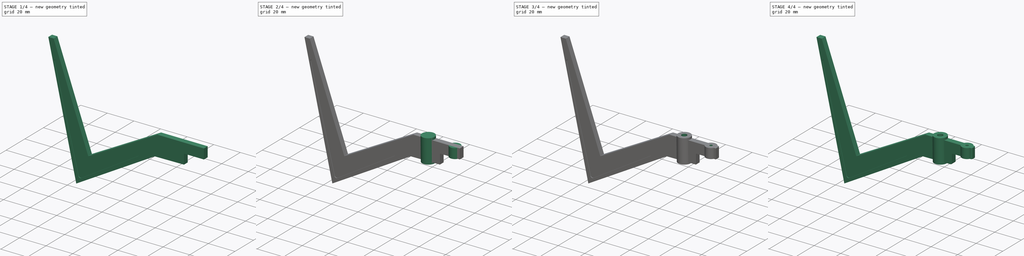
[diagram: build sequence overview — one tinted view per stage of 4, left to right]
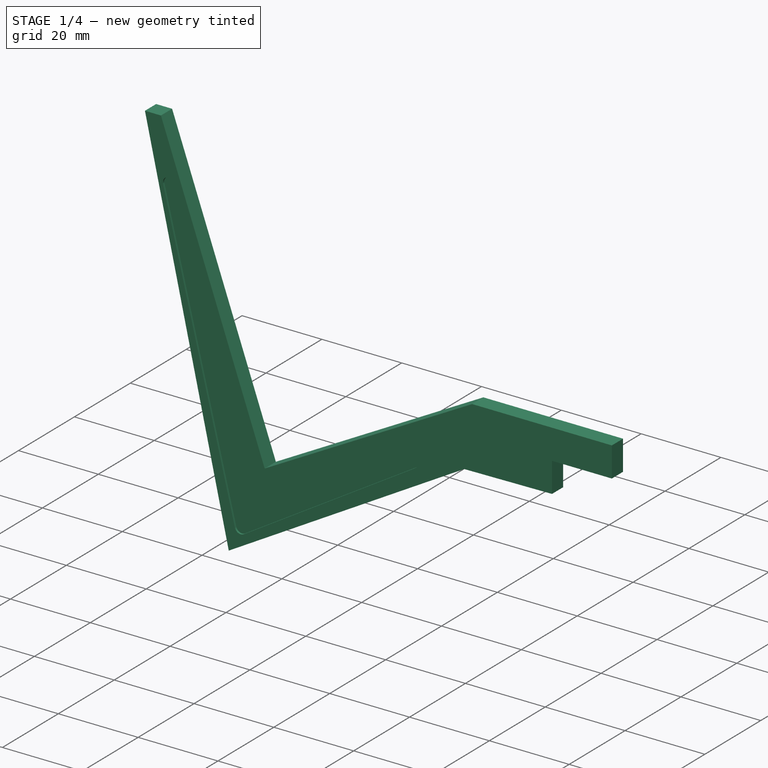
[diagram: stage 1 of 4 — iso view after this stage's code; geometry added in this stage tinted green]
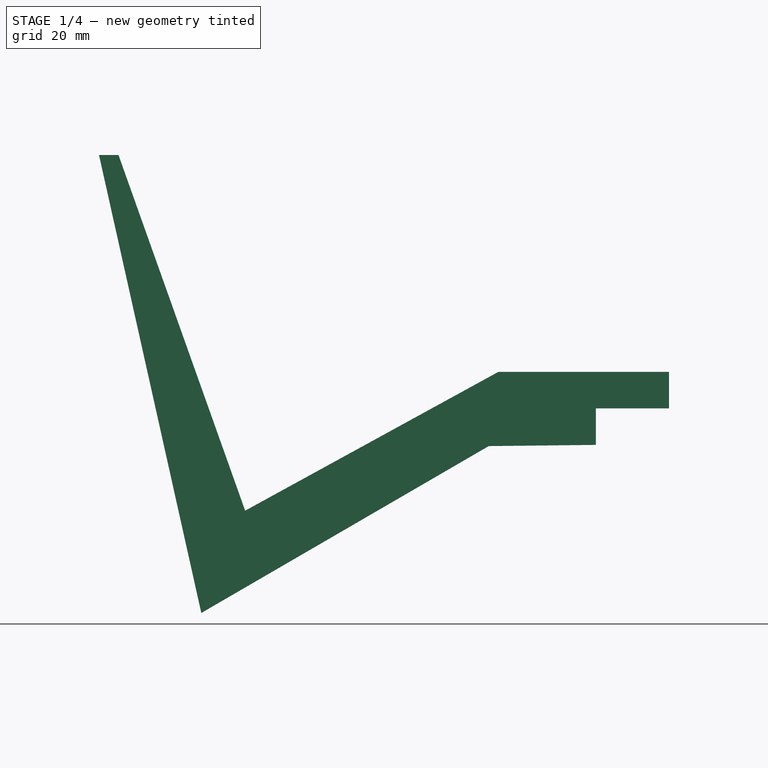
[diagram: stage 1 of 4 — front view after this stage's code; geometry added in this stage tinted green]
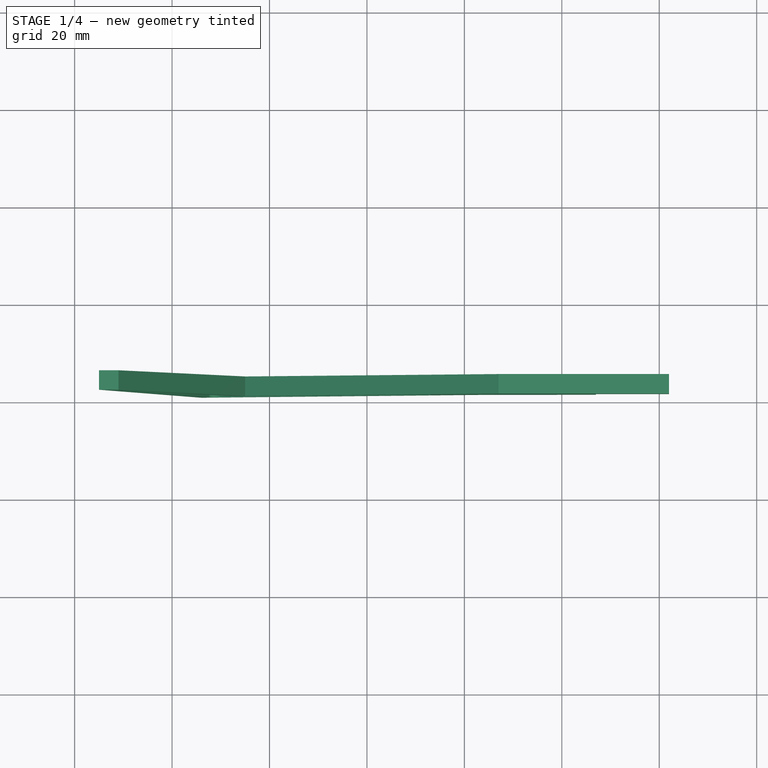
[diagram: stage 1 of 4 — top view after this stage's code; geometry added in this stage tinted green]
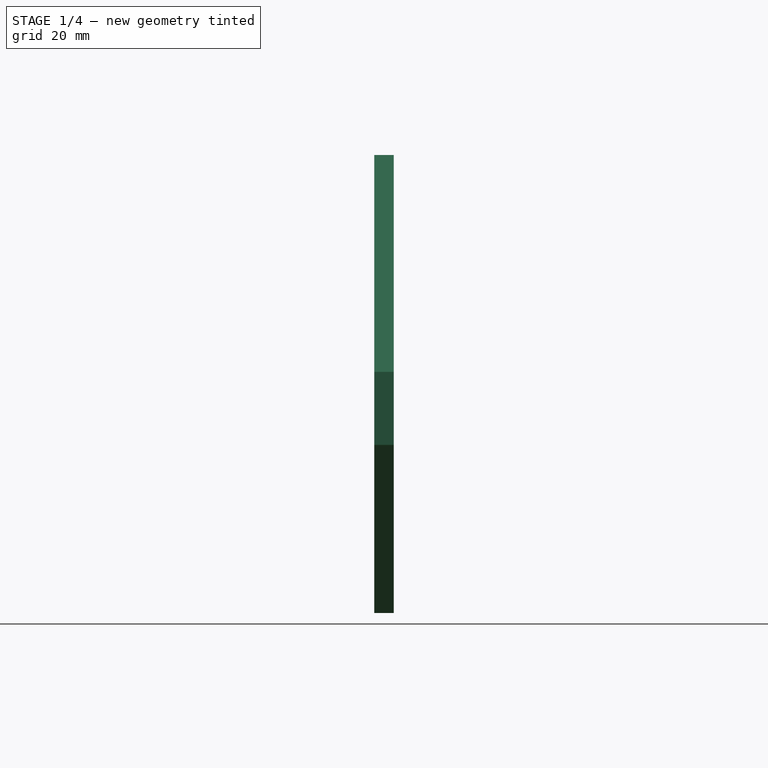
[diagram: stage 1 of 4 — right view after this stage's code; geometry added in this stage tinted green]
FCSTD DOCUMENT  (FreeCAD 0.14R3700 (Git))
Label: patte oscillante b
License: CC-BY 3.0
LicenseURL: http://creativecommons.org/licenses/by/3.0/
objects: Sketcher::SketchObject×6, PartDesign::Pad×3, PartDesign::Pocket×3, PartDesign::Fillet×3
note: 21 computed .brp shape members not serialized (recipe doc carries the construction recipe); baked Part::Feature solids carry a one-line shape summary decoded from their .brp

FEATURE [Sketcher::SketchObject] Sketch  label="corps de patte"
  Placement = pos=(-43,85,6) rot=(0,0.707107,-0.707107;3.14159rad)
  sketch-geometry (10):
    g0: LineSegment StartX=-25 StartY=-15.5 StartZ=0 EndX=-25 EndY=-8 EndZ=0
    g1: LineSegment StartX=-25 StartY=-8 StartZ=0 EndX=-10 EndY=-8 EndZ=0
    g2: LineSegment StartX=-10 StartY=-8 StartZ=0 EndX=-10 EndY=-0.5 EndZ=0
    g3: LineSegment StartX=-10 StartY=-0.5 StartZ=0 EndX=12 EndY=-0.25447 EndZ=0
    g4: LineSegment StartX=12 StartY=-0.25447 StartZ=0 EndX=71 EndY=34 EndZ=0
    g5: LineSegment StartX=71 StartY=34 StartZ=0 EndX=92 EndY=-60 EndZ=0
    g6: LineSegment StartX=92 StartY=-60 StartZ=0 EndX=88 EndY=-60 EndZ=0
    g7: LineSegment StartX=88 StartY=-60 StartZ=0 EndX=62 EndY=13 EndZ=0
    g8: LineSegment StartX=62 StartY=13 StartZ=0 EndX=10 EndY=-15.5 EndZ=0
    g9: LineSegment StartX=10 StartY=-15.5 StartZ=0 EndX=-25 EndY=-15.5 EndZ=0
  constraints (29):
    c: Coincident(g0,g1)
    c: Coincident(g1,g2)
    c: Coincident(g2,g3)
    c: Coincident(g3,g4)
    c: Coincident(g4,g5)
    c: Coincident(g5,g6)
    c: Coincident(g6,g7)
    c: Coincident(g7,g8)
    c: Coincident(g8,g9)
    c: Coincident(g9,g0)
    c: Vertical(g0)
    c: Horizontal(g1)
    c: Horizontal(g9)
    c: Horizontal(g6)
    c: DistanceX(g-1,g2) = -10
    c: Vertical(g2)
    c: DistanceX(g-1,g0) = -25
    c: DistanceY(g-1,g0) = -8
    c: DistanceY(g-1,g0) = -15.5
    c: DistanceX(g-1,g8) = 10
    c: DistanceX(g-1,g3) = 12
    c: DistanceX(g-1,g4) = 71
    c: DistanceX(g-1,g7) = 62
    c: DistanceX(g-1,g6) = 88
    c: DistanceX(g-1,g5) = 92
    c: DistanceY(g-1,g7) = 13
    c: DistanceY(g-1,g4) = 34
    c: DistanceY(g-1,g2) = -0.5
    c: DistanceY(g-1,g5) = -60
FEATURE [PartDesign::Pad] Pad
  Length = 4
  Length2 = 4
  Placement = pos=(-43,85,6) rot=(0,0.707107,-0.707107;3.14159rad)
  Sketch = -> Sketch
  Type = 0
FEATURE [Sketcher::SketchObject] Sketch001  label="evidement"
  Placement = pos=(-43,81,6) rot=(0,-0.707107,0.707107;3.14159rad)
  Support = -> Pad [Face12]
  sketch-geometry (10):
    g0: LineSegment StartX=23.5 StartY=-1.5 StartZ=0 EndX=23.5 EndY=1.5 EndZ=0
    g1: LineSegment StartX=24.213 StartY=2.77698 StartZ=0 EndX=67.213 EndY=29.277 EndZ=0
    g2: LineSegment StartX=69.4564 StartY=28.3591 StartZ=0 EndX=87.4564 EndY=-44.6409 EndZ=0
    g3: LineSegment StartX=84.5758 StartY=-45.4709 StartZ=0 EndX=64.4242 EndY=15.4709 EndZ=0
    g4: LineSegment StartX=62.3045 StartY=16.329 StartZ=0 EndX=25.6955 EndY=-2.82902 EndZ=0
    g5: ArcOfCircle CenterX=25 CenterY=1.5 CenterZ=0 NormalX=0 NormalY=0 NormalZ=1 Radius=1.5 StartAngle=2.1231 EndAngle=3.14159
    g6: ArcOfCircle CenterX=25 CenterY=-1.5 CenterZ=0 NormalX=0 NormalY=0 NormalZ=1 Radius=1.5 StartAngle=3.14159 EndAngle=5.19451
    g7: ArcOfCircle CenterX=63 CenterY=15 CenterZ=0 NormalX=0 NormalY=0 NormalZ=1 Radius=1.5 StartAngle=0.319352 EndAngle=2.05292
    g8: ArcOfCircle CenterX=68 CenterY=28 CenterZ=0 NormalX=0 NormalY=0 NormalZ=1 Radius=1.5 StartAngle=0.241753 EndAngle=2.1231
    g9: ArcOfCircle CenterX=86 CenterY=-45 CenterZ=0 NormalX=0 NormalY=0 NormalZ=1 Radius=1.5 StartAngle=3.46094 EndAngle=6.52494
  constraints (25):
    c: Tangent(g1,g5)
    c: Tangent(g0,g5)
    c: Radius(g5) = 1.5
    c: Tangent(g0,g6)
    c: Tangent(g4,g6)
    c: Tangent(g4,g7)
    c: Tangent(g3,g7)
    c: Tangent(g1,g8)
    c: Tangent(g2,g8)
    c: Tangent(g2,g9)
    c: Tangent(g3,g9)
    c: Radius(g6) = 1.5
    c: Radius(g9) = 1.5
    c: Radius(g7) = 1.5
    c: Radius(g8) = 1.5
    c: Vertical(g0)
    c: DistanceY(g-1,g6) = -1.5
    c: DistanceY(g-1,g5) = 1.5
    c: DistanceX(g-1,g6) = 25
    c: DistanceY(g-1,g7) = 15
    c: DistanceX(g-1,g7) = 63
    c: DistanceY(g-1,g8) = 28
    c: DistanceX(g-1,g8) = 68
    c: DistanceX(g-1,g9) = 86
    c: DistanceY(g-1,g9) = -45
FEATURE [PartDesign::Pocket] Pocket
  Length = 0.5
  Placement = pos=(-43,85,6) rot=(0,0.707107,-0.707107;3.14159rad)
  Sketch = -> Sketch001
  Type = 0
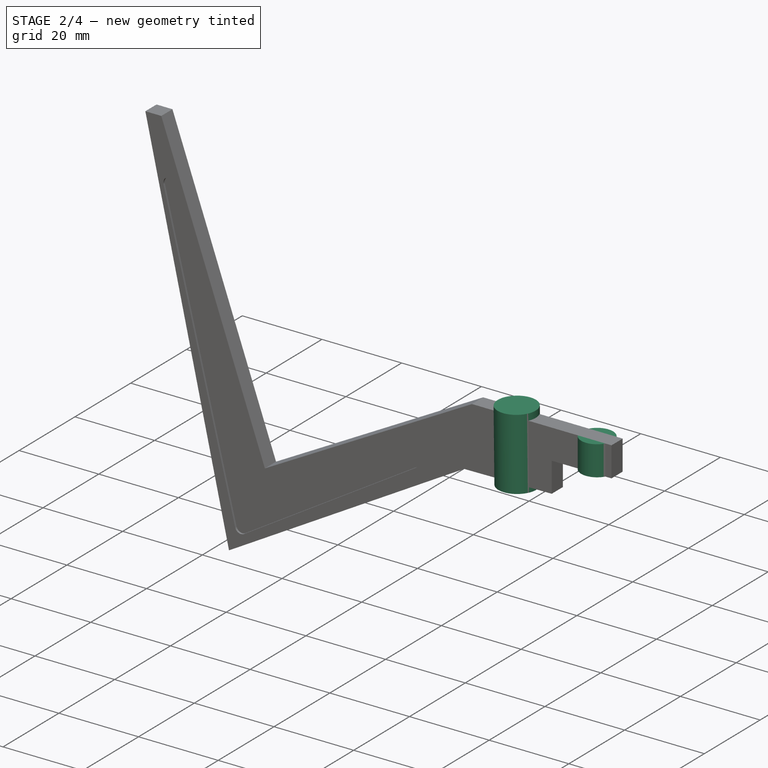
[diagram: stage 2 of 4 — iso view after this stage's code; geometry added in this stage tinted green]
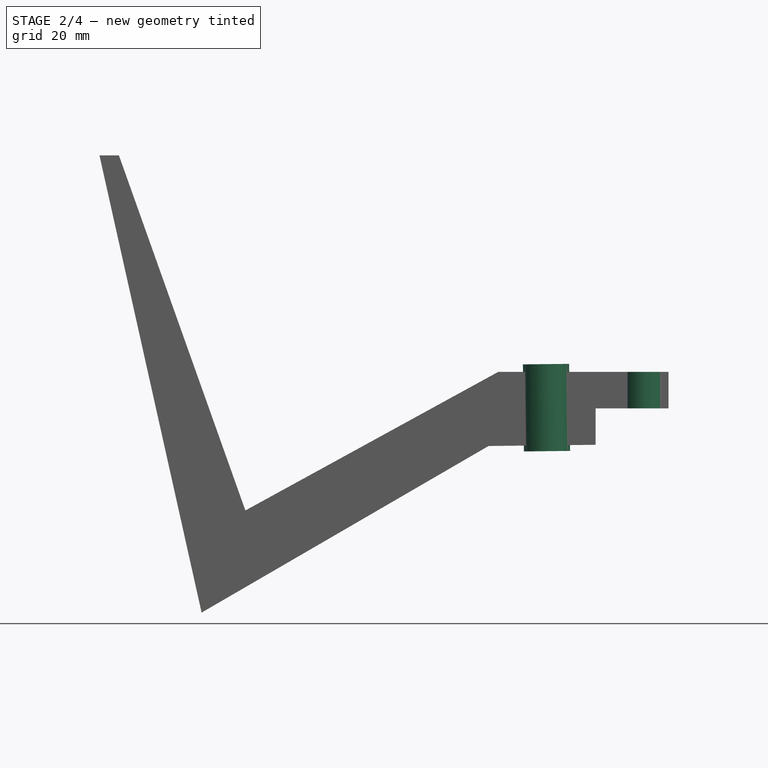
[diagram: stage 2 of 4 — front view after this stage's code; geometry added in this stage tinted green]
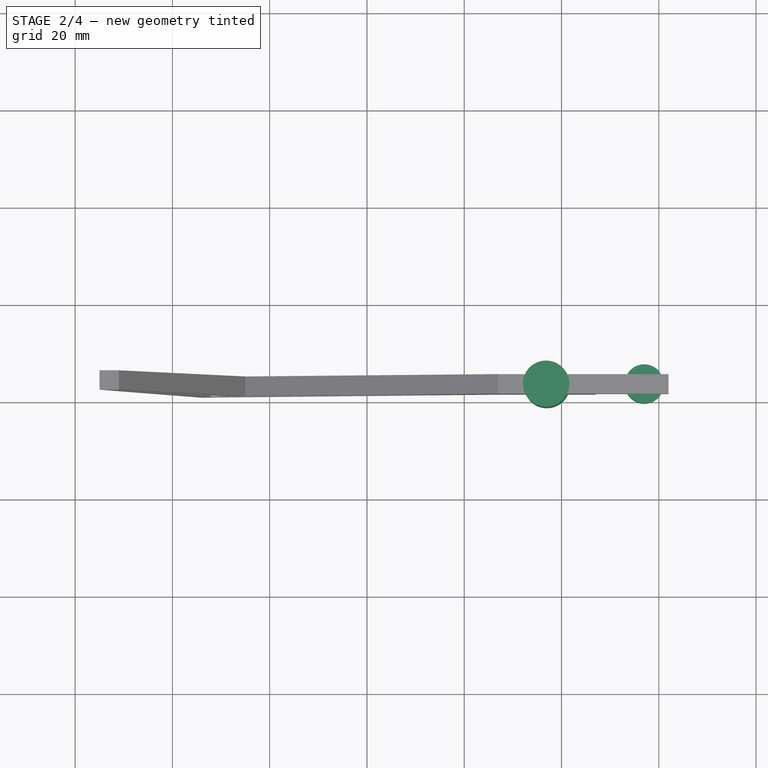
[diagram: stage 2 of 4 — top view after this stage's code; geometry added in this stage tinted green]
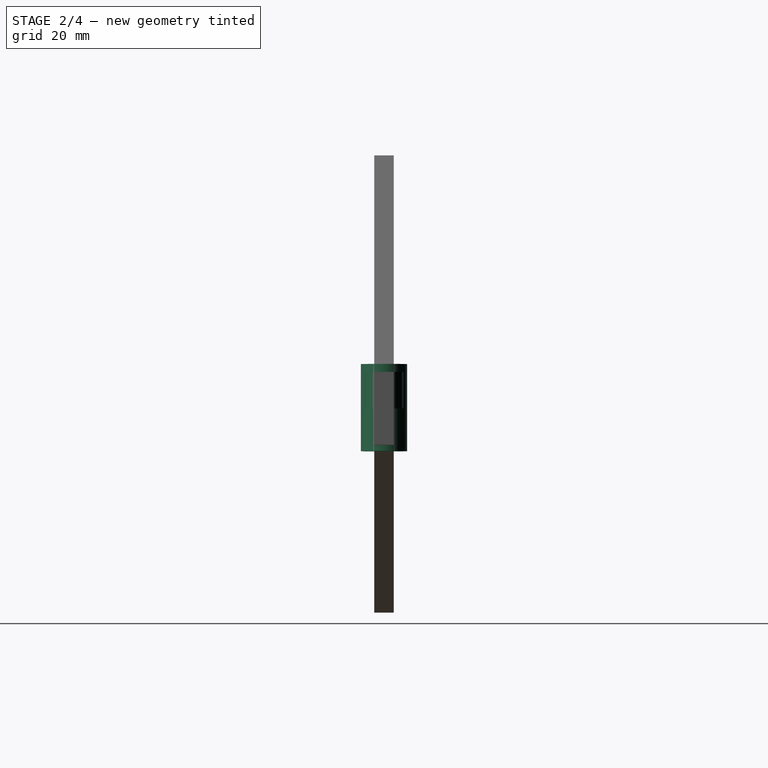
[diagram: stage 2 of 4 — right view after this stage's code; geometry added in this stage tinted green]
FEATURE [Sketcher::SketchObject] Sketch002
  Placement = pos=(-43.0043,85,6.38835) rot=(0.999984,0,0.00558;3.14159rad)
  Support = -> Pocket [Face8]
  sketch-geometry (1):
    g0: Circle CenterX=0 CenterY=2 CenterZ=0 NormalX=0 NormalY=0 NormalZ=1 Radius=4.75
  constraints (2):
    c: Radius(g0) = 4.75
    c: DistanceY(g-1,g0) = 2
FEATURE [PartDesign::Pad] Pad001
  Length = 1.2
  Length2 = 16.7
  Placement = pos=(-43,85,6) rot=(0,0.707107,-0.707107;3.14159rad)
  Sketch = -> Sketch002
  Type = 4
FEATURE [Sketcher::SketchObject] Sketch003
  Placement = pos=(-43,85,14) rot=(1,0,0;3.14159rad)
  Support = -> Pad001 [Face3]
  sketch-geometry (1):
    g0: Circle CenterX=20 CenterY=2 CenterZ=0 NormalX=0 NormalY=0 NormalZ=1 Radius=4
  constraints (3):
    c: Radius(g0) = 4
    c: DistanceX(g-1,g0) = 20
    c: DistanceY(g-1,g0) = 2
FEATURE [PartDesign::Pad] Pad002
  Length = 7.5
  Length2 = 16
  Placement = pos=(-43,85,6) rot=(0,0.707107,-0.707107;3.14159rad)
  Reversed = true
  Sketch = -> Sketch003
  Type = 0
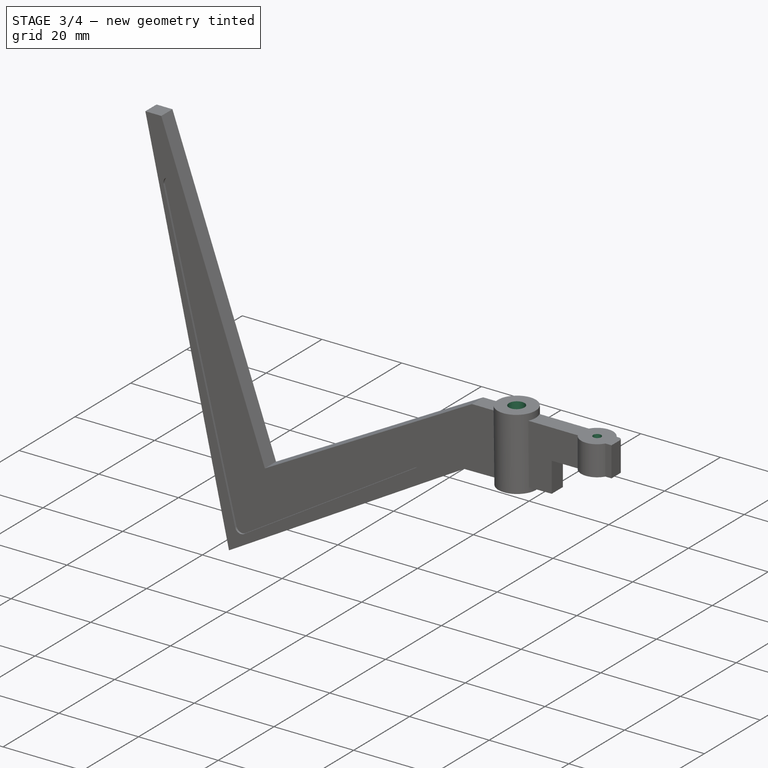
[diagram: stage 3 of 4 — iso view after this stage's code; geometry added in this stage tinted green]
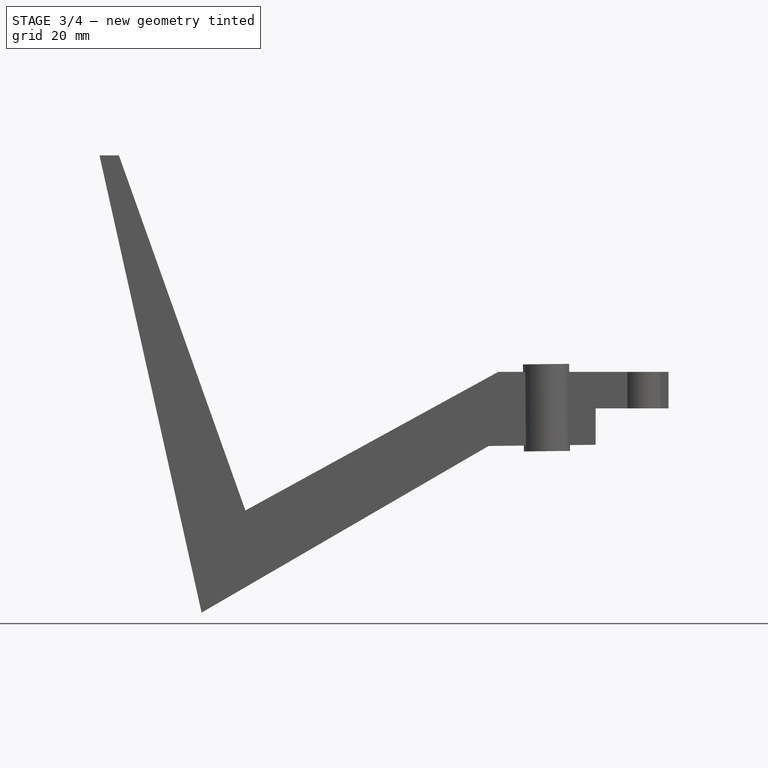
[diagram: stage 3 of 4 — front view after this stage's code; geometry added in this stage tinted green]
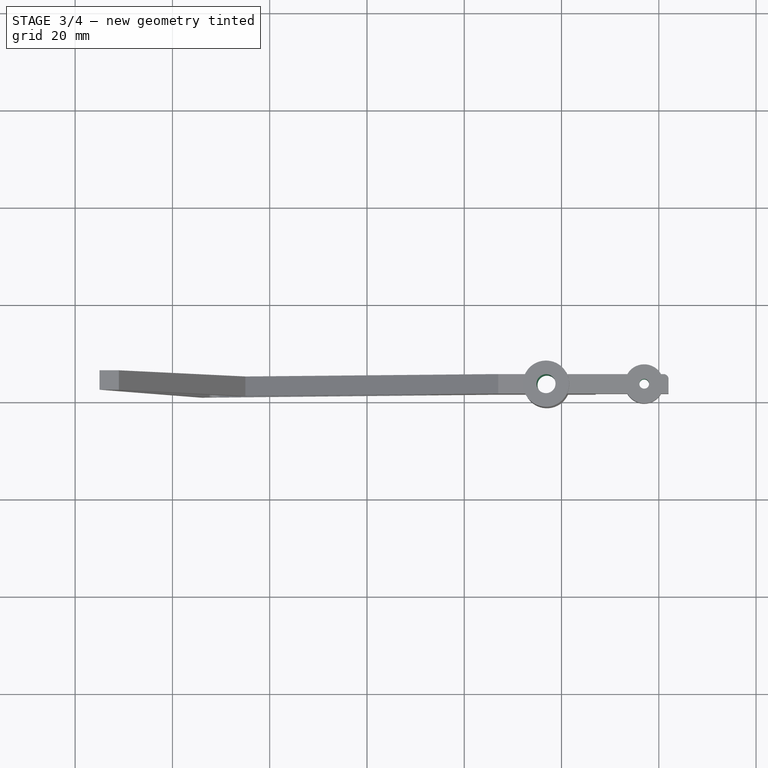
[diagram: stage 3 of 4 — top view after this stage's code; geometry added in this stage tinted green]
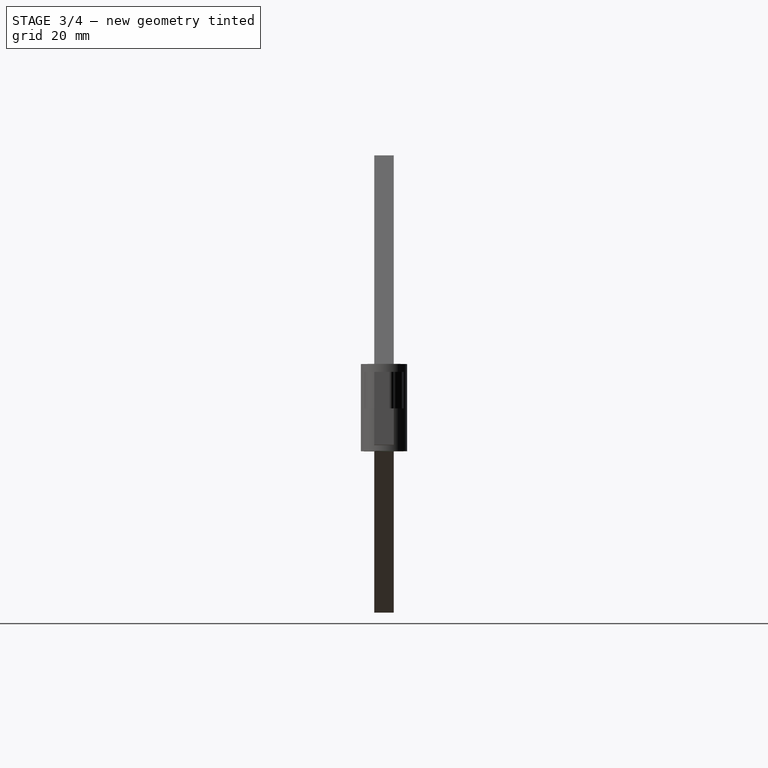
[diagram: stage 3 of 4 — right view after this stage's code; geometry added in this stage tinted green]
FEATURE [Sketcher::SketchObject] Sketch004
  Placement = pos=(-42.9909,85,5.18842) rot=(0.999984,0,0.00558;3.14159rad)
  Support = -> Pad002 [Face22]
  sketch-geometry (1):
    g0: Circle CenterX=0 CenterY=2 CenterZ=0 NormalX=0 NormalY=0 NormalZ=1 Radius=1.95
  constraints (1):
    c: Radius(g0) = 1.95
FEATURE [PartDesign::Pocket] Pocket001
  Length = 5
  Placement = pos=(-43,85,6) rot=(0,0.707107,-0.707107;3.14159rad)
  Sketch = -> Sketch004
  Type = 1
FEATURE [Sketcher::SketchObject] Sketch005
  Placement = pos=(-43,85,14) rot=(1,0,0;3.14159rad)
  Support = -> Pocket001 [Face7]
  sketch-geometry (1):
    g0: Circle CenterX=20 CenterY=2 CenterZ=0 NormalX=0 NormalY=0 NormalZ=1 Radius=1
  constraints (2):
    c: DistanceY(g-1,g0) = 2
    c: DistanceX(g-1,g0) = 20
FEATURE [PartDesign::Pocket] Pocket002
  Length = 5
  Placement = pos=(-43,85,6) rot=(0,0.707107,-0.707107;3.14159rad)
  Sketch = -> Sketch005
  Type = 1
FEATURE [PartDesign::Fillet] Fillet
  Base = -> Pocket002 [Edge3]
  Placement = pos=(-43,85,6) rot=(0,0.707107,-0.707107;3.14159rad)
  Radius = 1
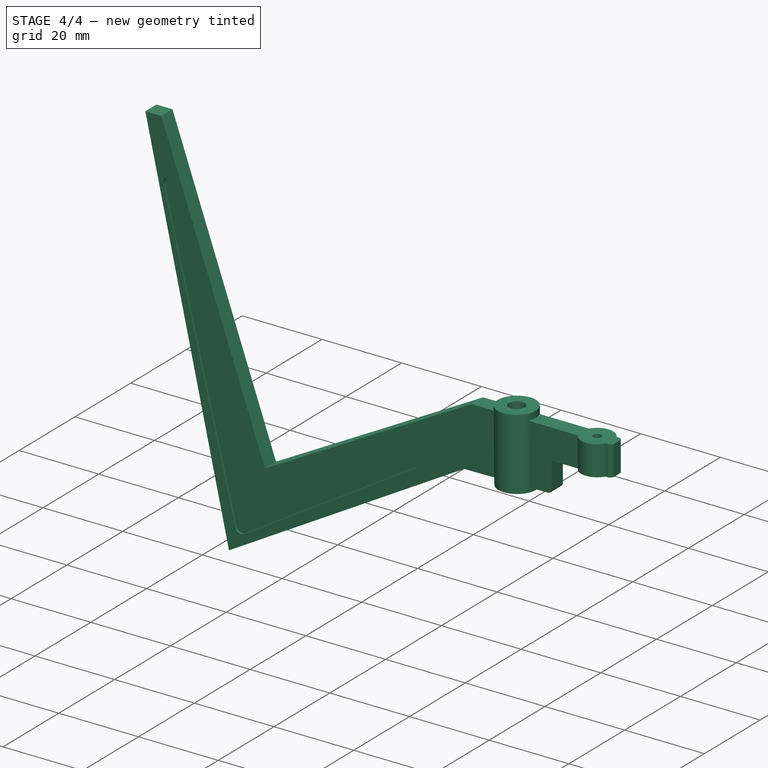
[diagram: stage 4 of 4 — iso view after this stage's code; geometry added in this stage tinted green]
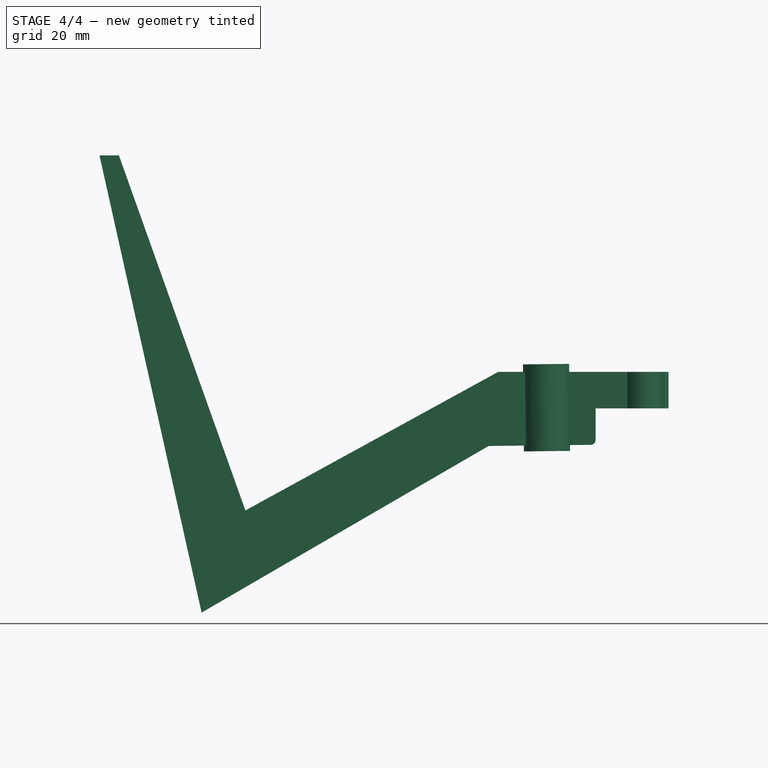
[diagram: stage 4 of 4 — front view after this stage's code; geometry added in this stage tinted green]
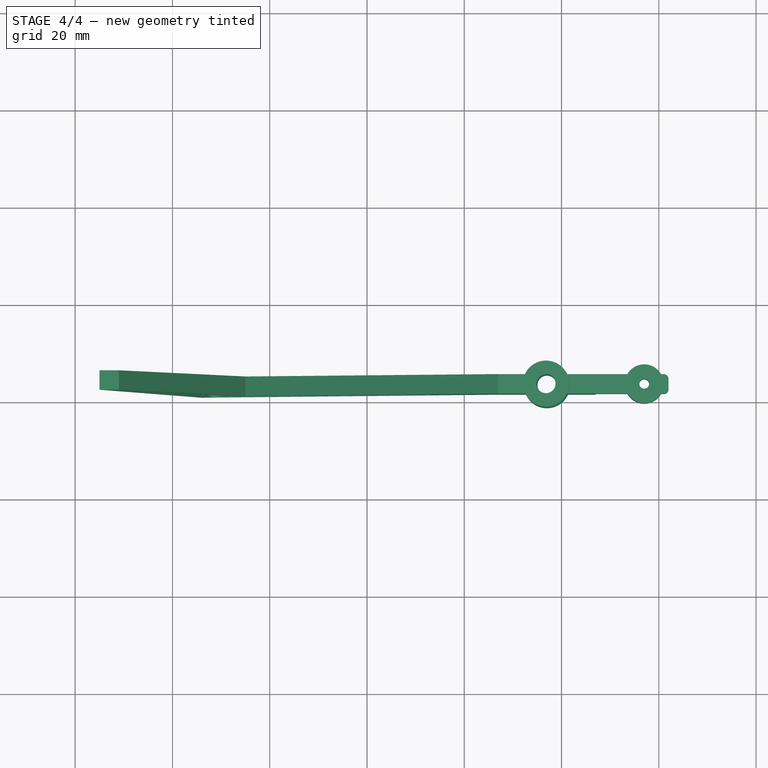
[diagram: stage 4 of 4 — top view after this stage's code; geometry added in this stage tinted green]
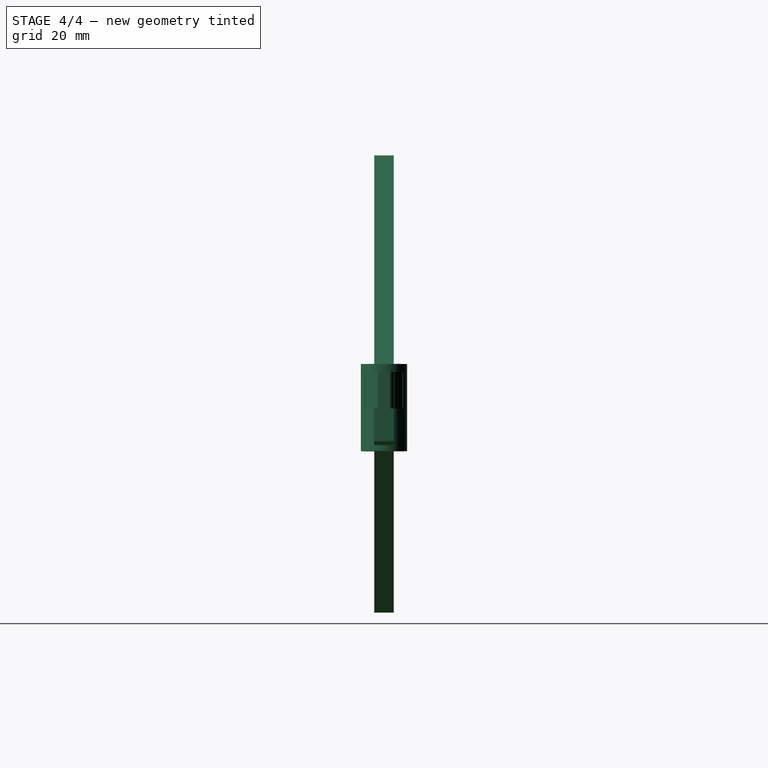
[diagram: stage 4 of 4 — right view after this stage's code; geometry added in this stage tinted green]
FEATURE [PartDesign::Fillet] Fillet001
  Base = -> Fillet [Edge3]
  Placement = pos=(-43,85,6) rot=(0,0.707107,-0.707107;3.14159rad)
  Radius = 1
FEATURE [PartDesign::Fillet] Fillet002
  Base = -> Fillet001 [Edge59]
  Placement = pos=(-43,85,6) rot=(0,0.707107,-0.707107;3.14159rad)
  Radius = 1
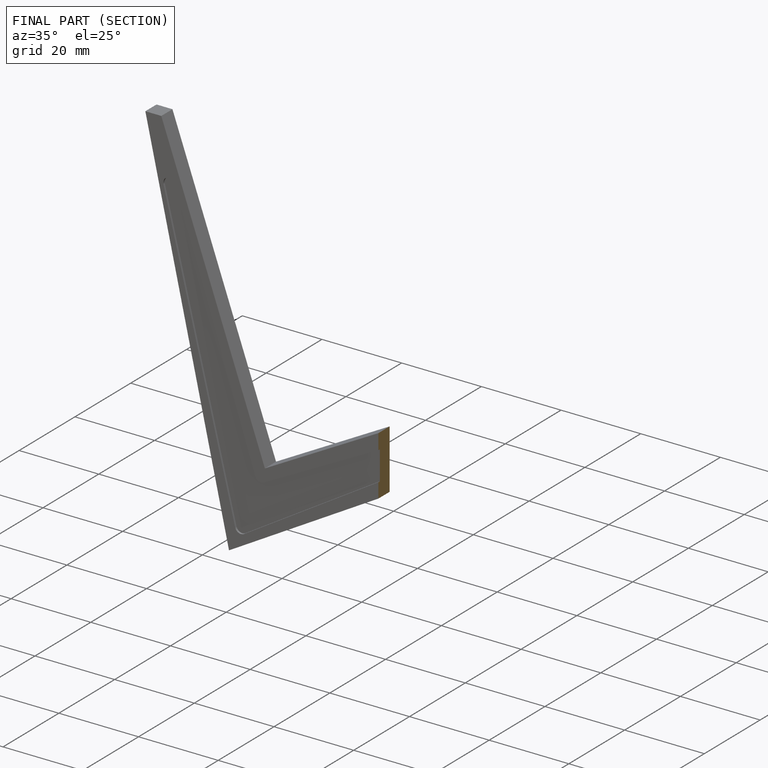
[diagram: finished part — half-section view (interior)]
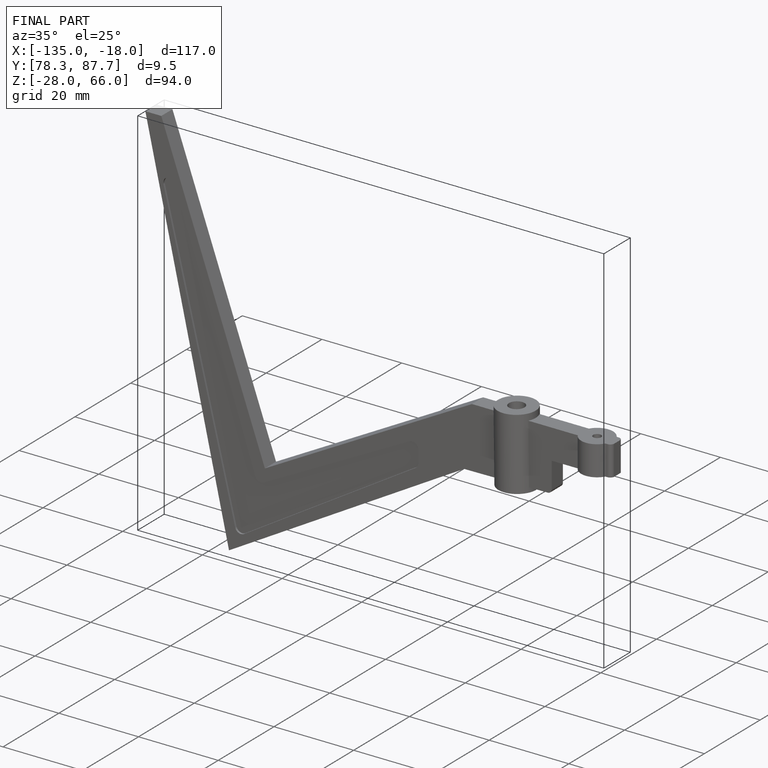
[diagram: finished part — iso view with bounding-box wireframe]
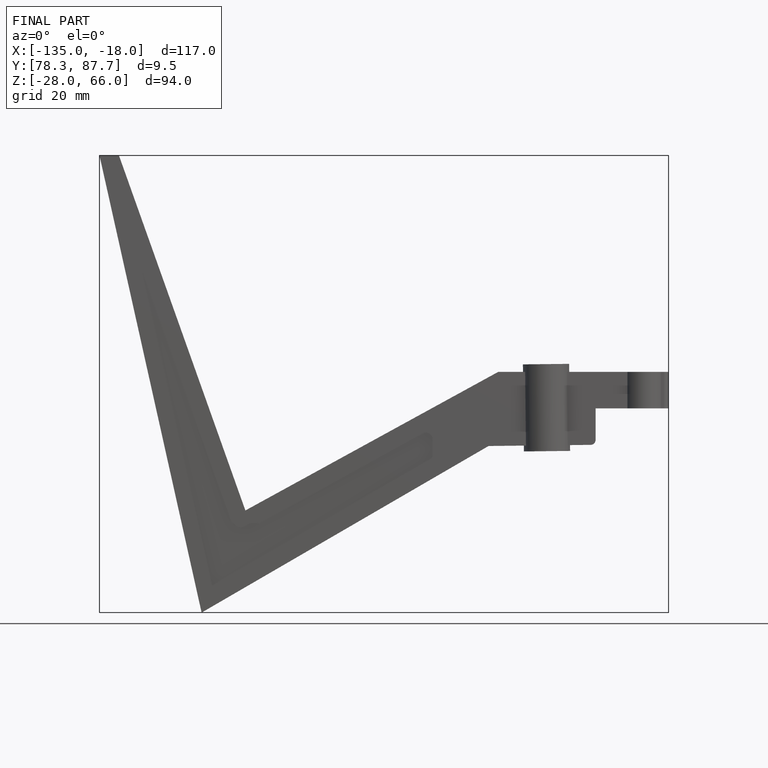
[diagram: finished part — front view with bounding-box wireframe]
